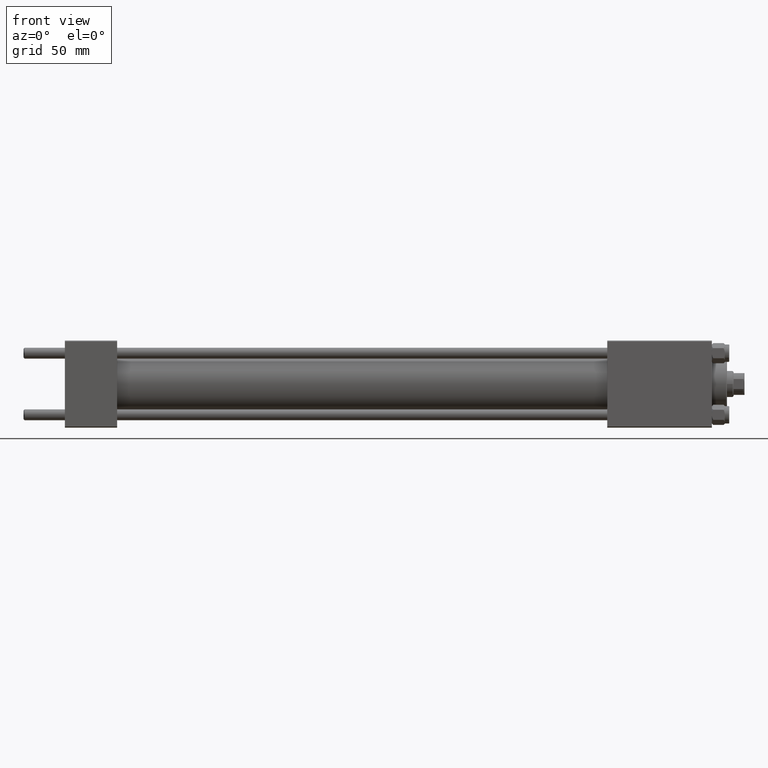
[diagram: clean part render]
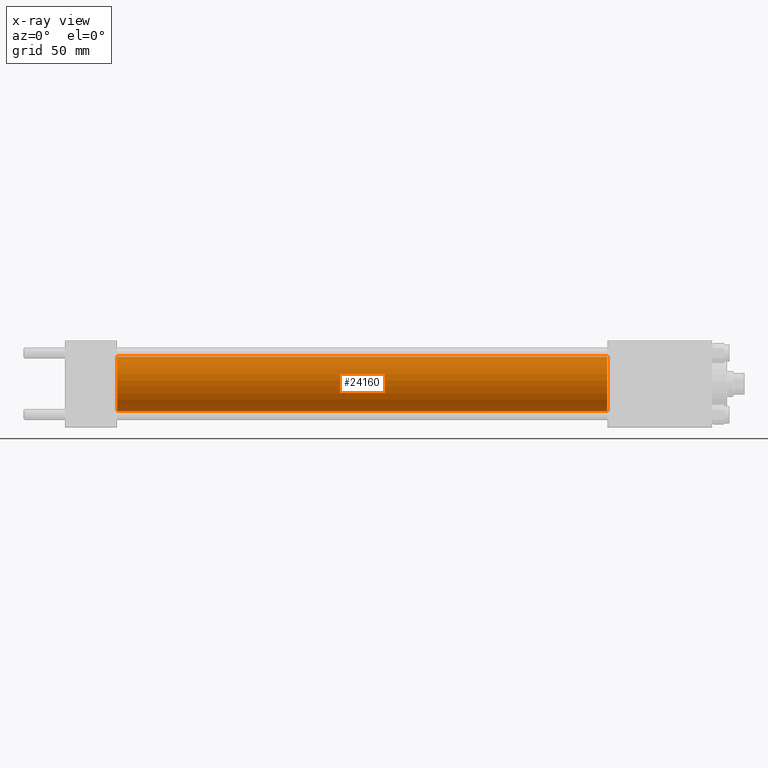
[diagram: x-ray — body ghosted, one internal face saturated and labeled with its STEP entity id]
A machine part, front view, then the same camera in x-ray: the body is ghosted and one INTERNAL B-rep face — a face not visible from any outside direction — is saturated and labeled: STEP entity #24160.
In plain terms, the highlighted cylindrical surface (edge-blend (fillet) strip) has radius 12.5 mm, axis along (-1, -0, -0).
Its self-contained STEP definition (entity closure, byte-faithful):
#2290 = EDGE_CURVE ( 'NONE', #9536, #5836, #27599, .T. ) ;
#2373 = DIRECTION ( 'NONE',  ( -1.000000000000000000, -0.000000000000000000, -0.000000000000000000 ) ) ;
#3221 = AXIS2_PLACEMENT_3D ( 'NONE', #33563, #44408, #21484 ) ;
#3375 = EDGE_CURVE ( 'NONE', #5238, #32553, #17955, .T. ) ;
#5238 = VERTEX_POINT ( 'NONE', #30791 ) ;
#5836 = VERTEX_POINT ( 'NONE', #39760 ) ;
#7355 = EDGE_LOOP ( 'NONE', ( #45796, #29611, #22454, #14998 ) ) ;
#9536 = VERTEX_POINT ( 'NONE', #42222 ) ;
#10168 = CARTESIAN_POINT ( 'NONE',  ( 249.0000000000000000, 1.530808498934191127E-15, -12.49999999999999645 ) ) ;
#12282 = LINE ( 'NONE', #39211, #20907 ) ;
#12828 = VECTOR ( 'NONE', #2373, 1000.000000000000000 ) ;
#14078 = DIRECTION ( 'NONE',  ( 0.000000000000000000, 0.000000000000000000, -1.000000000000000000 ) ) ;
#14339 = DIRECTION ( 'NONE',  ( 0.000000000000000000, 0.000000000000000000, -1.000000000000000000 ) ) ;
#14998 = ORIENTED_EDGE ( 'NONE', *, *, #49356, .F. ) ;
#16292 = DIRECTION ( 'NONE',  ( -1.000000000000000000, -0.000000000000000000, -0.000000000000000000 ) ) ;
#17875 = CARTESIAN_POINT ( 'NONE',  ( 249.0000000000000000, 0.000000000000000000, 0.000000000000000000 ) ) ;
#17955 = CIRCLE ( 'NONE', #46115, 12.49999999999999645 ) ;
#20907 = VECTOR ( 'NONE', #16292, 1000.000000000000000 ) ;
#21252 = LINE ( 'NONE', #10168, #12828 ) ;
#21484 = DIRECTION ( 'NONE',  ( 0.000000000000000000, 0.000000000000000000, 1.000000000000000000 ) ) ;
#21892 = DIRECTION ( 'NONE',  ( 1.000000000000000000, 0.000000000000000000, 0.000000000000000000 ) ) ;
#22454 = ORIENTED_EDGE ( 'NONE', *, *, #2290, .F. ) ;
#22480 = FACE_OUTER_BOUND ( 'NONE', #7355, .T. ) ;
#24160 = ADVANCED_FACE ( 'NONE', ( #22480 ), #40879, .F. ) ;
#26171 = CARTESIAN_POINT ( 'NONE',  ( 24.00000000000000000, 0.000000000000000000, 0.000000000000000000 ) ) ;
#27599 = CIRCLE ( 'NONE', #40463, 12.49999999999999645 ) ;
#29611 = ORIENTED_EDGE ( 'NONE', *, *, #45094, .T. ) ;
#30791 = CARTESIAN_POINT ( 'NONE',  ( 249.0000000000000000, 0.000000000000000000, 12.49999999999999645 ) ) ;
#32553 = VERTEX_POINT ( 'NONE', #38459 ) ;
#33563 = CARTESIAN_POINT ( 'NONE',  ( 249.0000000000000000, 0.000000000000000000, 0.000000000000000000 ) ) ;
#37754 = DIRECTION ( 'NONE',  ( 1.000000000000000000, 0.000000000000000000, 0.000000000000000000 ) ) ;
#38459 = CARTESIAN_POINT ( 'NONE',  ( 249.0000000000000000, 1.530808498934191127E-15, -12.49999999999999645 ) ) ;
#39211 = CARTESIAN_POINT ( 'NONE',  ( 249.0000000000000000, 0.000000000000000000, 12.49999999999999645 ) ) ;
#39760 = CARTESIAN_POINT ( 'NONE',  ( 24.00000000000000000, 1.530808498934191127E-15, -12.49999999999999645 ) ) ;
#40463 = AXIS2_PLACEMENT_3D ( 'NONE', #26171, #21892, #14078 ) ;
#40879 = CYLINDRICAL_SURFACE ( 'NONE', #3221, 12.49999999999999645 ) ;
#42222 = CARTESIAN_POINT ( 'NONE',  ( 24.00000000000000000, 0.000000000000000000, 12.49999999999999645 ) ) ;
#44408 = DIRECTION ( 'NONE',  ( -1.000000000000000000, -0.000000000000000000, -0.000000000000000000 ) ) ;
#45094 = EDGE_CURVE ( 'NONE', #32553, #5836, #21252, .T. ) ;
#45796 = ORIENTED_EDGE ( 'NONE', *, *, #3375, .T. ) ;
#46115 = AXIS2_PLACEMENT_3D ( 'NONE', #17875, #37754, #14339 ) ;
#49356 = EDGE_CURVE ( 'NONE', #5238, #9536, #12282, .T. ) ;